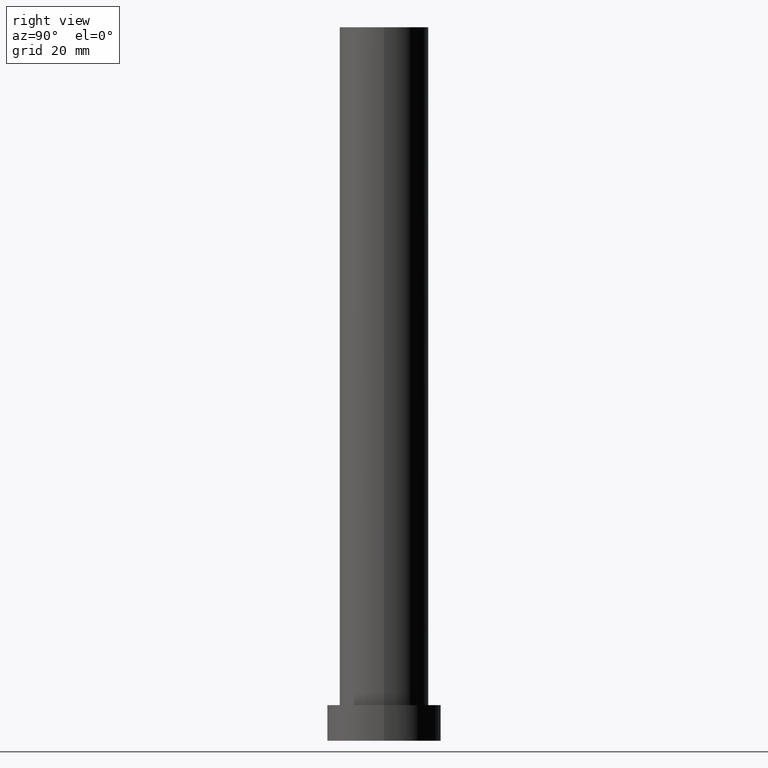
[diagram: clean part render]
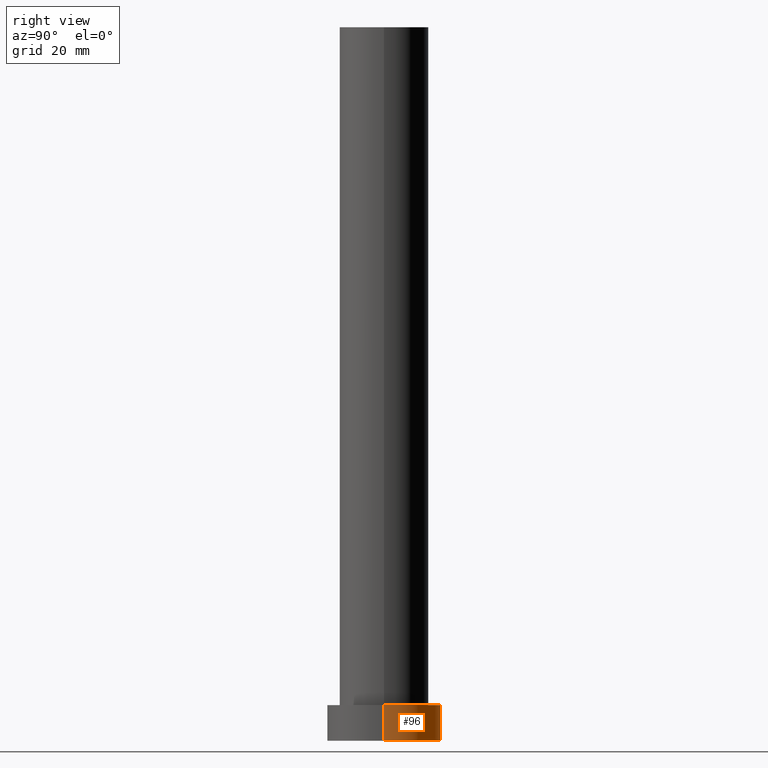
[diagram: same view with one face highlighted and labeled with its STEP entity id]
A machine part, right view. The second image highlights one B-rep face of the part: STEP entity #96.
In plain terms, the highlighted cylindrical surface (partial cylindrical patch) has radius 16 mm, axis along (-0, -0, -1).
Its self-contained STEP definition (entity closure, byte-faithful):
#2 = VECTOR ( 'NONE', #176, 1000.000000000000000 ) ;
#4 = CARTESIAN_POINT ( 'NONE',  ( -16.00000000000000000, 0.000000000000000000, 10.00000000000000000 ) ) ;
#16 = EDGE_CURVE ( 'NONE', #166, #231, #238, .T. ) ;
#19 = CARTESIAN_POINT ( 'NONE',  ( 0.000000000000000000, 0.000000000000000000, 10.00000000000000000 ) ) ;
#20 = CARTESIAN_POINT ( 'NONE',  ( 16.00000000000000000, 1.959434878635765131E-15, 0.000000000000000000 ) ) ;
#22 = DIRECTION ( 'NONE',  ( 0.000000000000000000, 0.000000000000000000, 1.000000000000000000 ) ) ;
#37 = FACE_OUTER_BOUND ( 'NONE', #232, .T. ) ;
#38 = CYLINDRICAL_SURFACE ( 'NONE', #234, 16.00000000000000000 ) ;
#87 = DIRECTION ( 'NONE',  ( 1.000000000000000000, 0.000000000000000000, 0.000000000000000000 ) ) ;
#92 = DIRECTION ( 'NONE',  ( -1.000000000000000000, 0.000000000000000000, 0.000000000000000000 ) ) ;
#96 = ADVANCED_FACE ( 'NONE', ( #37 ), #38, .T. ) ;
#97 = CARTESIAN_POINT ( 'NONE',  ( 0.000000000000000000, 0.000000000000000000, 0.000000000000000000 ) ) ;
#99 = CARTESIAN_POINT ( 'NONE',  ( 16.00000000000000000, 1.959434878635765131E-15, 10.00000000000000000 ) ) ;
#114 = DIRECTION ( 'NONE',  ( -0.000000000000000000, -0.000000000000000000, -1.000000000000000000 ) ) ;
#117 = CARTESIAN_POINT ( 'NONE',  ( 16.00000000000000000, 1.959434878635765131E-15, 10.00000000000000000 ) ) ;
#124 = VECTOR ( 'NONE', #237, 1000.000000000000000 ) ;
#127 = ORIENTED_EDGE ( 'NONE', *, *, #16, .F. ) ;
#132 = EDGE_CURVE ( 'NONE', #225, #165, #156, .T. ) ;
#138 = CARTESIAN_POINT ( 'NONE',  ( -16.00000000000000000, 0.000000000000000000, 10.00000000000000000 ) ) ;
#139 = LINE ( 'NONE', #4, #124 ) ;
#148 = ORIENTED_EDGE ( 'NONE', *, *, #191, .F. ) ;
#154 = EDGE_CURVE ( 'NONE', #166, #225, #219, .T. ) ;
#156 = CIRCLE ( 'NONE', #175, 16.00000000000000000 ) ;
#160 = DIRECTION ( 'NONE',  ( 1.000000000000000000, 0.000000000000000000, 0.000000000000000000 ) ) ;
#165 = VERTEX_POINT ( 'NONE', #216 ) ;
#166 = VERTEX_POINT ( 'NONE', #99 ) ;
#175 = AXIS2_PLACEMENT_3D ( 'NONE', #97, #22, #160 ) ;
#176 = DIRECTION ( 'NONE',  ( -0.000000000000000000, -0.000000000000000000, -1.000000000000000000 ) ) ;
#191 = EDGE_CURVE ( 'NONE', #231, #165, #139, .T. ) ;
#207 = CARTESIAN_POINT ( 'NONE',  ( 0.000000000000000000, 0.000000000000000000, 10.00000000000000000 ) ) ;
#216 = CARTESIAN_POINT ( 'NONE',  ( -16.00000000000000000, 0.000000000000000000, 0.000000000000000000 ) ) ;
#219 = LINE ( 'NONE', #117, #2 ) ;
#223 = ORIENTED_EDGE ( 'NONE', *, *, #132, .T. ) ;
#225 = VERTEX_POINT ( 'NONE', #20 ) ;
#231 = VERTEX_POINT ( 'NONE', #138 ) ;
#232 = EDGE_LOOP ( 'NONE', ( #127, #247, #223, #148 ) ) ;
#234 = AXIS2_PLACEMENT_3D ( 'NONE', #19, #114, #92 ) ;
#237 = DIRECTION ( 'NONE',  ( -0.000000000000000000, -0.000000000000000000, -1.000000000000000000 ) ) ;
#238 = CIRCLE ( 'NONE', #254, 16.00000000000000000 ) ;
#247 = ORIENTED_EDGE ( 'NONE', *, *, #154, .T. ) ;
#251 = DIRECTION ( 'NONE',  ( 0.000000000000000000, 0.000000000000000000, 1.000000000000000000 ) ) ;
#254 = AXIS2_PLACEMENT_3D ( 'NONE', #207, #251, #87 ) ;